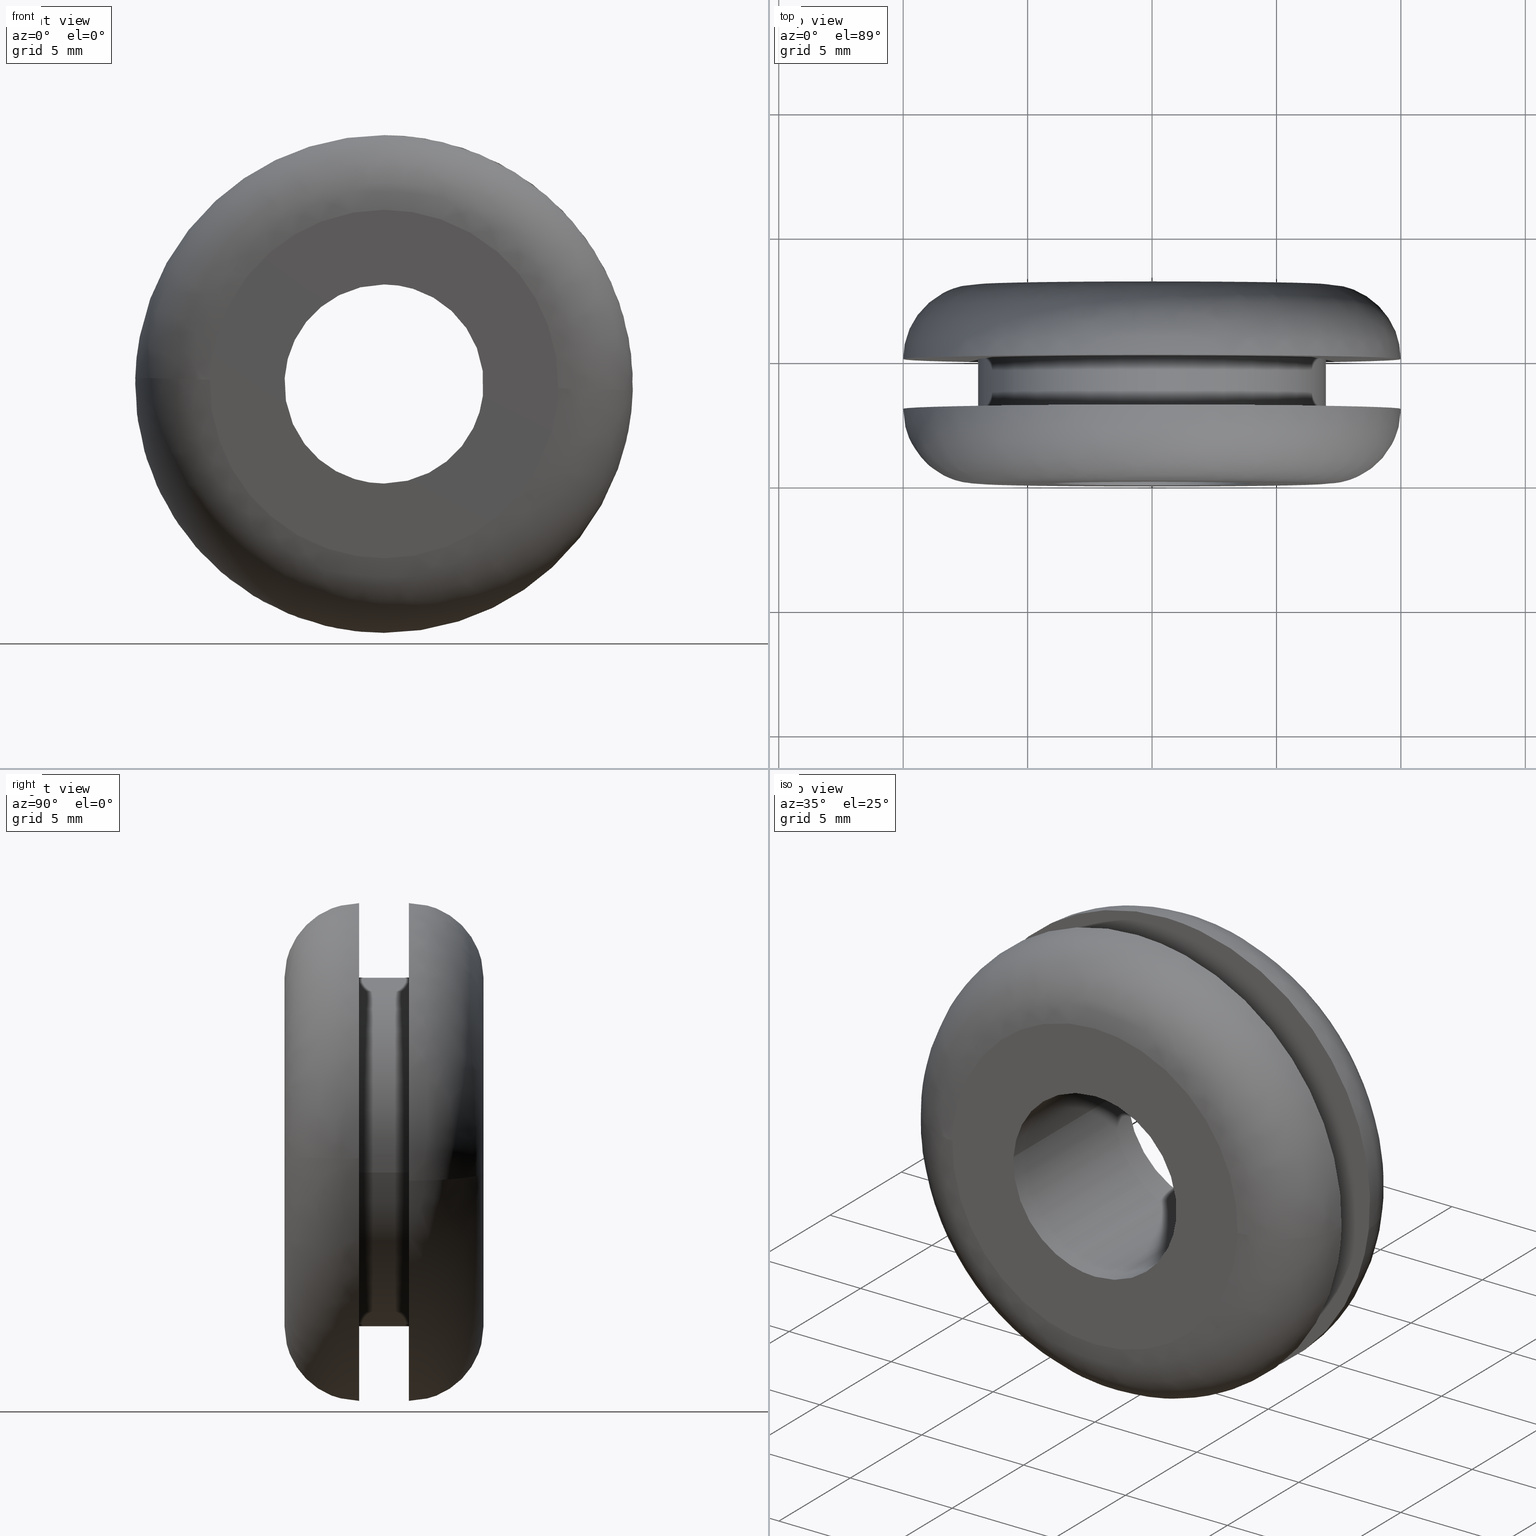
[diagram: canonical four-view strip — front | top / right | iso, engineering-drawing reading convention]
A machine part, canonical four-view strip (front | top / right | iso — engineering-drawing reading convention). The complete STEP part file that produces these views, byte-faithful:
ISO-10303-21;
HEADER;
/****************************************************************
 * Generated by software with PDE/Lib inside                    *
 * PDElib Version 4.4.1-0003, patched  Thursday August 19 11:58 *
 * International Technegroup Inc. (www.iti-oh.com)              *
 ****************************************************************/
FILE_DESCRIPTION((''),'2;1');
FILE_NAME('','2005-12-14T13:41:45',(''),(''),'','CADfix','');
FILE_SCHEMA(('AUTOMOTIVE_DESIGN'));
ENDSEC;
DATA;
#5=APPLICATION_CONTEXT('automotive design');
#6=APPLICATION_PROTOCOL_DEFINITION('Draft International Standard','automotive_design',1998,#5);
#7=PRODUCT_CONTEXT('None',#5,'mechanical');
#8=PRODUCT('grommet','','None',(#7));
#9=PRODUCT_RELATED_PRODUCT_CATEGORY('part','description',(#8));
#10=PRODUCT_DEFINITION_FORMATION('None','None',#8);
#11=PRODUCT_DEFINITION_CONTEXT('part definition',#5,'design');
#12=PRODUCT_DEFINITION('None','None',#10,#11);
#18=(NAMED_UNIT(*)PLANE_ANGLE_UNIT()SI_UNIT($,.RADIAN.));
#19=DIMENSIONAL_EXPONENTS(0.0,0.0,0.0,0.0,0.0,0.0,0.0);
#20=PLANE_ANGLE_MEASURE_WITH_UNIT(PLANE_ANGLE_MEASURE(0.017453292500000),#18);
#24=(CONVERSION_BASED_UNIT('DEGREE',#20)NAMED_UNIT(#19)PLANE_ANGLE_UNIT());
#28=(NAMED_UNIT(*)SI_UNIT($,.STERADIAN.)SOLID_ANGLE_UNIT());
#32=(LENGTH_UNIT()NAMED_UNIT(*)SI_UNIT(.MILLI.,.METRE.));
#34=UNCERTAINTY_MEASURE_WITH_UNIT(LENGTH_MEASURE(0.001000000000000),#32,'DISTANCE_ACCURACY_VALUE','');
#36=(GEOMETRIC_REPRESENTATION_CONTEXT(3)GLOBAL_UNCERTAINTY_ASSIGNED_CONTEXT((#34))GLOBAL_UNIT_ASSIGNED_CONTEXT((#24,#28,#32))REPRESENTATION_CONTEXT('None','None'));
#37=AXIS2_PLACEMENT_3D('',#38,#39,#40);
#38=CARTESIAN_POINT('',(0.0,0.0,0.0));
#39=DIRECTION('',(0.0,0.0,1.0));
#40=DIRECTION('',(1.0,0.0,0.0));
#41=ADVANCED_BREP_SHAPE_REPRESENTATION('',(#37,#911),#36);
#42=PRODUCT_DEFINITION_SHAPE('','',#12);
#43=SHAPE_DEFINITION_REPRESENTATION(#42,#41);
#44=CARTESIAN_POINT('',(6.951066684545665,5.050000000000002,-0.826239642597309));
#45=CARTESIAN_POINT('',(6.974713308140240,5.050000000000001,-0.627303100465844));
#46=CARTESIAN_POINT('',(6.986943588953067,5.050000000000001,-0.427339776743999));
#47=CARTESIAN_POINT('',(7.414283365697066,5.050000000000001,6.559603812209068));
#48=CARTESIAN_POINT('',(0.427339776743999,5.050000000000001,6.986943588953067));
#49=CARTESIAN_POINT('',(-6.559603812209068,5.050000000000001,7.414283365697066));
#50=CARTESIAN_POINT('',(-6.986943588953067,5.050000000000001,0.427339776743999));
#51=CARTESIAN_POINT('',(6.951066684545665,2.948750000000000,-0.826239642597309));
#52=CARTESIAN_POINT('',(6.974713308140240,2.948750000000000,-0.627303100465844));
#53=CARTESIAN_POINT('',(6.986943588953067,2.948750000000000,-0.427339776743999));
#54=CARTESIAN_POINT('',(7.414283365697066,2.948750000000000,6.559603812209068));
#55=CARTESIAN_POINT('',(0.427339776743999,2.948750000000000,6.986943588953067));
#56=CARTESIAN_POINT('',(-6.559603812209068,2.948750000000000,7.414283365697066));
#57=CARTESIAN_POINT('',(-6.986943588953067,2.948750000000000,0.427339776743999));
#65=(BOUNDED_SURFACE()B_SPLINE_SURFACE(2,1,((#44,#51),(#45,#52),(#46,#53),(#47,#54),(#48,#55),(#49,#56),(#50,#57)),.UNSPECIFIED.,.F.,.F.,.U.)B_SPLINE_SURFACE_WITH_KNOTS((3,2,2,3),(2,2),(0.0,0.463919189857867,12.061898936304530,23.659878682751181),(0.0,2.101250000000002),.UNSPECIFIED.)GEOMETRIC_REPRESENTATION_ITEM()RATIONAL_B_SPLINE_SURFACE(((0.977505800795127,0.977505800795127),(0.988284271247462,0.988284271247462),(1.0,1.0),(0.707106781186548,0.707106781186548),(1.0,1.0),(0.707106781186548,0.707106781186548),(1.0,1.0)))REPRESENTATION_ITEM('')SURFACE());
#66=CARTESIAN_POINT('',(6.951067166005178,2.999999999999949,-0.826235592109230));
#67=VERTEX_POINT('',#66);
#68=CARTESIAN_POINT('',(0.0,3.0,7.0));
#69=VERTEX_POINT('',#68);
#70=CARTESIAN_POINT('',(6.951067166005178,2.999999999999950,-0.826235592109230));
#71=CARTESIAN_POINT('',(7.0,3.000000000000000,-0.414566790908887));
#72=CARTESIAN_POINT('',(7.0,3.0,-1.836910E-016));
#73=CARTESIAN_POINT('',(6.999999999999999,3.000000000000000,6.999999999999999));
#74=CARTESIAN_POINT('',(0.0,3.0,7.0));
#82=(BOUNDED_CURVE()B_SPLINE_CURVE(2,(#70,#71,#72,#73,#74),.UNSPECIFIED.,.F.,.U.)B_SPLINE_CURVE_WITH_KNOTS((3,2,3),(0.229562571996310,0.250000000000000,0.500000000000000),.UNSPECIFIED.)CURVE()GEOMETRIC_REPRESENTATION_ITEM()RATIONAL_B_SPLINE_CURVE((0.956026947214111,0.976056063710924,1.0,0.707106781186547,1.0))REPRESENTATION_ITEM(''));
#83=EDGE_CURVE('',#67,#69,#82,.T.);
#84=ORIENTED_EDGE('',*,*,#83,.F.);
#85=CARTESIAN_POINT('',(6.951067160060351,5.0,-0.826235642122928));
#86=VERTEX_POINT('',#85);
#87=CARTESIAN_POINT('',(6.951067160060351,5.0,-0.826235642122928));
#88=CARTESIAN_POINT('',(6.951067166005178,2.999999999999949,-0.826235592109230));
#89=QUASI_UNIFORM_CURVE('',1,(#87,#88),.UNSPECIFIED.,.F.,.U.);
#90=EDGE_CURVE('',#86,#67,#89,.T.);
#91=ORIENTED_EDGE('',*,*,#90,.F.);
#92=CARTESIAN_POINT('',(0.0,5.0,7.0));
#93=VERTEX_POINT('',#92);
#94=CARTESIAN_POINT('',(6.951067160060351,5.000000000000001,-0.826235642122928));
#95=CARTESIAN_POINT('',(6.999999999999999,5.0,-0.414566816180102));
#96=CARTESIAN_POINT('',(7.0,5.0,-1.836910E-016));
#97=CARTESIAN_POINT('',(6.999999999999999,4.999999999999999,6.999999999999999));
#98=CARTESIAN_POINT('',(0.0,5.0,7.0));
#106=(BOUNDED_CURVE()B_SPLINE_CURVE(2,(#94,#95,#96,#97,#98),.UNSPECIFIED.,.F.,.U.)B_SPLINE_CURVE_WITH_KNOTS((3,2,3),(0.229562570780312,0.250000000000000,0.500000000000000),.UNSPECIFIED.)CURVE()GEOMETRIC_REPRESENTATION_ITEM()RATIONAL_B_SPLINE_CURVE((0.956026944830704,0.976056062286294,1.0,0.707106781186547,1.0))REPRESENTATION_ITEM(''));
#107=EDGE_CURVE('',#86,#93,#106,.T.);
#108=ORIENTED_EDGE('',*,*,#107,.T.);
#109=CARTESIAN_POINT('',(-6.986943966739478,5.0,0.427333599901195));
#110=VERTEX_POINT('',#109);
#111=CARTESIAN_POINT('',(0.0,5.0,7.0));
#112=CARTESIAN_POINT('',(-6.584948300672126,5.000000000000001,6.999999999999999));
#113=CARTESIAN_POINT('',(-6.986943966739478,5.0,0.427333599901195));
#121=(BOUNDED_CURVE()B_SPLINE_CURVE(2,(#111,#112,#113),.UNSPECIFIED.,.F.,.U.)B_SPLINE_CURVE_WITH_KNOTS((3,3),(0.500000000000000,0.739333114782848),.UNSPECIFIED.)CURVE()GEOMETRIC_REPRESENTATION_ITEM()RATIONAL_B_SPLINE_CURVE((1.0,0.719603814570409,0.976072368597561))REPRESENTATION_ITEM(''));
#122=EDGE_CURVE('',#93,#110,#121,.T.);
#123=ORIENTED_EDGE('',*,*,#122,.T.);
#124=CARTESIAN_POINT('',(-6.986943971456531,3.000000000000065,0.427333522775779));
#125=VERTEX_POINT('',#124);
#126=CARTESIAN_POINT('',(-6.986943966739478,5.0,0.427333599901195));
#127=CARTESIAN_POINT('',(-6.986943971456531,3.000000000000065,0.427333522775779));
#128=QUASI_UNIFORM_CURVE('',1,(#126,#127),.UNSPECIFIED.,.F.,.U.);
#129=EDGE_CURVE('',#110,#125,#128,.T.);
#130=ORIENTED_EDGE('',*,*,#129,.T.);
#131=CARTESIAN_POINT('',(0.0,3.0,7.0));
#132=CARTESIAN_POINT('',(-6.584948373495934,2.999999999999999,6.999999999999999));
#133=CARTESIAN_POINT('',(-6.986943971456531,3.000000000000065,0.427333522775779));
#141=(BOUNDED_CURVE()B_SPLINE_CURVE(2,(#131,#132,#133),.UNSPECIFIED.,.F.,.U.)B_SPLINE_CURVE_WITH_KNOTS((3,3),(0.500000000000000,0.739333116687507),.UNSPECIFIED.)CURVE()GEOMETRIC_REPRESENTATION_ITEM()RATIONAL_B_SPLINE_CURVE((1.0,0.719603812338962,0.976072372679614))REPRESENTATION_ITEM(''));
#142=EDGE_CURVE('',#69,#125,#141,.T.);
#143=ORIENTED_EDGE('',*,*,#142,.F.);
#144=EDGE_LOOP('',(#84,#91,#108,#123,#130,#143));
#145=FACE_OUTER_BOUND('',#144,.T.);
#146=ADVANCED_FACE('',(#145),#65,.T.);
#147=CARTESIAN_POINT('',(-6.986943588953067,5.050000000000001,0.427339776743999));
#148=CARTESIAN_POINT('',(-7.414283365697066,5.050000000000001,-6.559603812209068));
#149=CARTESIAN_POINT('',(-0.427339776743999,5.050000000000001,-6.986943588953067));
#150=CARTESIAN_POINT('',(6.170804435876506,5.050000000000001,-7.390503377127691));
#151=CARTESIAN_POINT('',(6.951066684545665,5.050000000000002,-0.826239642597309));
#152=CARTESIAN_POINT('',(-6.986943588953067,2.948750000000000,0.427339776743999));
#153=CARTESIAN_POINT('',(-7.414283365697066,2.948750000000000,-6.559603812209068));
#154=CARTESIAN_POINT('',(-0.427339776743999,2.948750000000000,-6.986943588953067));
#155=CARTESIAN_POINT('',(6.170804435876506,2.948750000000000,-7.390503377127691));
#156=CARTESIAN_POINT('',(6.951066684545665,2.948750000000000,-0.826239642597309));
#164=(BOUNDED_SURFACE()B_SPLINE_SURFACE(2,1,((#147,#152),(#148,#153),(#149,#154),(#150,#155),(#151,#156)),.UNSPECIFIED.,.F.,.F.,.U.)B_SPLINE_SURFACE_WITH_KNOTS((3,2,3),(2,2),(0.0,11.597979746446660,22.732040303035451),(0.0,2.101250000000002),.UNSPECIFIED.)GEOMETRIC_REPRESENTATION_ITEM()RATIONAL_B_SPLINE_SURFACE(((1.0,1.0),(0.707106781186548,0.707106781186548),(1.0,1.0),(0.718822509939086,0.718822509939086),(0.977505800795127,0.977505800795127)))REPRESENTATION_ITEM('')SURFACE());
#165=CARTESIAN_POINT('',(0.0,3.0,-7.0));
#166=VERTEX_POINT('',#165);
#167=CARTESIAN_POINT('',(0.0,3.0,-7.0));
#168=CARTESIAN_POINT('',(6.217225330029973,3.000000000000001,-6.999999999999999));
#169=CARTESIAN_POINT('',(6.951067166005178,2.999999999999950,-0.826235592109230));
#177=(BOUNDED_CURVE()B_SPLINE_CURVE(2,(#167,#168,#169),.UNSPECIFIED.,.F.,.U.)B_SPLINE_CURVE_WITH_KNOTS((3,3),(0.0,0.229562571996310),.UNSPECIFIED.)CURVE()GEOMETRIC_REPRESENTATION_ITEM()RATIONAL_B_SPLINE_CURVE((1.0,0.731050717475624,0.956026947214111))REPRESENTATION_ITEM(''));
#178=EDGE_CURVE('',#166,#67,#177,.T.);
#179=ORIENTED_EDGE('',*,*,#178,.F.);
#180=CARTESIAN_POINT('',(-6.986943971456531,3.000000000000065,0.427333522775779));
#181=CARTESIAN_POINT('',(-7.000000000000001,3.000000000000000,0.213866207338468));
#182=CARTESIAN_POINT('',(-7.0,3.0,-1.836910E-016));
#183=CARTESIAN_POINT('',(-6.999999999999999,3.000000000000000,-6.999999999999999));
#184=CARTESIAN_POINT('',(0.0,3.0,-7.0));
#192=(BOUNDED_CURVE()B_SPLINE_CURVE(2,(#180,#181,#182,#183,#184),.UNSPECIFIED.,.F.,.U.)B_SPLINE_CURVE_WITH_KNOTS((3,2,3),(0.739333116687507,0.750000000000000,1.0),.UNSPECIFIED.)CURVE()GEOMETRIC_REPRESENTATION_ITEM()RATIONAL_B_SPLINE_CURVE((0.976072372679614,0.987502968847585,1.0,0.707106781186547,1.0))REPRESENTATION_ITEM(''));
#193=EDGE_CURVE('',#125,#166,#192,.T.);
#194=ORIENTED_EDGE('',*,*,#193,.F.);
#195=ORIENTED_EDGE('',*,*,#129,.F.);
#196=CARTESIAN_POINT('',(0.0,5.0,-7.0));
#197=VERTEX_POINT('',#196);
#198=CARTESIAN_POINT('',(-6.986943966739478,5.0,0.427333599901195));
#199=CARTESIAN_POINT('',(-7.000000000000001,5.0,0.213866246009296));
#200=CARTESIAN_POINT('',(-7.0,5.0,-1.836910E-016));
#201=CARTESIAN_POINT('',(-6.999999999999999,4.999999999999999,-6.999999999999999));
#202=CARTESIAN_POINT('',(0.0,5.0,-7.0));
#210=(BOUNDED_CURVE()B_SPLINE_CURVE(2,(#198,#199,#200,#201,#202),.UNSPECIFIED.,.F.,.U.)B_SPLINE_CURVE_WITH_KNOTS((3,2,3),(0.739333114782848,0.750000000000000,1.0),.UNSPECIFIED.)CURVE()GEOMETRIC_REPRESENTATION_ITEM()RATIONAL_B_SPLINE_CURVE((0.976072368597561,0.987502966616138,1.0,0.707106781186547,1.0))REPRESENTATION_ITEM(''));
#211=EDGE_CURVE('',#110,#197,#210,.T.);
#212=ORIENTED_EDGE('',*,*,#211,.T.);
#213=CARTESIAN_POINT('',(0.0,5.0,-7.0));
#214=CARTESIAN_POINT('',(6.217225284981444,5.0,-6.999999999999999));
#215=CARTESIAN_POINT('',(6.951067160060351,5.000000000000001,-0.826235642122928));
#223=(BOUNDED_CURVE()B_SPLINE_CURVE(2,(#213,#214,#215),.UNSPECIFIED.,.F.,.U.)B_SPLINE_CURVE_WITH_KNOTS((3,3),(0.0,0.229562570780312),.UNSPECIFIED.)CURVE()GEOMETRIC_REPRESENTATION_ITEM()RATIONAL_B_SPLINE_CURVE((1.0,0.731050718900253,0.956026944830704))REPRESENTATION_ITEM(''));
#224=EDGE_CURVE('',#197,#86,#223,.T.);
#225=ORIENTED_EDGE('',*,*,#224,.T.);
#226=ORIENTED_EDGE('',*,*,#90,.T.);
#227=EDGE_LOOP('',(#179,#194,#195,#212,#225,#226));
#228=FACE_OUTER_BOUND('',#227,.T.);
#229=ADVANCED_FACE('',(#228),#164,.T.);
#230=CARTESIAN_POINT('',(3.972038105454666,8.200000000000001,-0.472136938627034));
#231=CARTESIAN_POINT('',(3.985550461794422,8.199999999999999,-0.358458914551911));
#232=CARTESIAN_POINT('',(3.992539193687467,8.199999999999999,-0.244194158139428));
#233=CARTESIAN_POINT('',(4.236733351826894,8.199999999999999,3.748345035548039));
#234=CARTESIAN_POINT('',(0.244194158139428,8.199999999999999,3.992539193687467));
#235=CARTESIAN_POINT('',(-3.748345035548039,8.199999999999999,4.236733351826894));
#236=CARTESIAN_POINT('',(-3.992539193687467,8.199999999999999,0.244194158139428));
#237=CARTESIAN_POINT('',(3.972038105454666,-0.205000000000000,-0.472136938627034));
#238=CARTESIAN_POINT('',(3.985550461794422,-0.205000000000000,-0.358458914551911));
#239=CARTESIAN_POINT('',(3.992539193687467,-0.205000000000000,-0.244194158139428));
#240=CARTESIAN_POINT('',(4.236733351826894,-0.205000000000000,3.748345035548039));
#241=CARTESIAN_POINT('',(0.244194158139428,-0.205000000000000,3.992539193687467));
#242=CARTESIAN_POINT('',(-3.748345035548039,-0.205000000000000,4.236733351826894));
#243=CARTESIAN_POINT('',(-3.992539193687467,-0.205000000000000,0.244194158139428));
#251=(BOUNDED_SURFACE()B_SPLINE_SURFACE(2,1,((#230,#237),(#231,#238),(#232,#239),(#233,#240),(#234,#241),(#235,#242),(#236,#243)),.UNSPECIFIED.,.F.,.F.,.U.)B_SPLINE_SURFACE_WITH_KNOTS((3,2,2,3),(2,2),(0.0,0.265096679918781,6.892513677888300,13.519930675857820),(0.0,8.404999999999999),.UNSPECIFIED.)GEOMETRIC_REPRESENTATION_ITEM()RATIONAL_B_SPLINE_SURFACE(((0.977505800795127,0.977505800795127),(0.988284271247462,0.988284271247462),(1.0,1.0),(0.707106781186548,0.707106781186548),(1.0,1.0),(0.707106781186548,0.707106781186548),(1.0,1.0)))REPRESENTATION_ITEM('')SURFACE());
#252=CARTESIAN_POINT('',(3.972038936126205,8.0,-0.472129950170368));
#253=VERTEX_POINT('',#252);
#254=CARTESIAN_POINT('',(0.0,8.0,4.0));
#255=VERTEX_POINT('',#254);
#256=CARTESIAN_POINT('',(3.972038936126205,8.0,-0.472129950170368));
#257=CARTESIAN_POINT('',(4.0,8.0,-0.236892947439694));
#258=CARTESIAN_POINT('',(4.0,8.0,-1.836910E-016));
#259=CARTESIAN_POINT('',(4.000000000000000,8.0,4.000000000000000));
#260=CARTESIAN_POINT('',(0.0,8.0,4.0));
#268=(BOUNDED_CURVE()B_SPLINE_CURVE(2,(#256,#257,#258,#259,#260),.UNSPECIFIED.,.F.,.U.)B_SPLINE_CURVE_WITH_KNOTS((3,2,3),(0.229562770862239,0.250000000000000,0.500000000000000),.UNSPECIFIED.)CURVE()GEOMETRIC_REPRESENTATION_ITEM()RATIONAL_B_SPLINE_CURVE((0.956027337000208,0.976056296696852,1.0,0.707106781186548,1.0))REPRESENTATION_ITEM(''));
#269=EDGE_CURVE('',#253,#255,#268,.T.);
#270=ORIENTED_EDGE('',*,*,#269,.F.);
#271=CARTESIAN_POINT('',(3.972038926118297,-3.389876E-016,-0.472130034368349));
#272=VERTEX_POINT('',#271);
#273=CARTESIAN_POINT('',(3.972038936126205,8.0,-0.472129950170368));
#274=CARTESIAN_POINT('',(3.972038926118297,-3.389876E-016,-0.472130034368349));
#275=QUASI_UNIFORM_CURVE('',1,(#273,#274),.UNSPECIFIED.,.F.,.U.);
#276=EDGE_CURVE('',#253,#272,#275,.T.);
#277=ORIENTED_EDGE('',*,*,#276,.T.);
#278=CARTESIAN_POINT('',(0.0,-7.347638E-016,4.0));
#279=VERTEX_POINT('',#278);
#280=CARTESIAN_POINT('',(3.972038926118297,-3.389876E-016,-0.472130034368349));
#281=CARTESIAN_POINT('',(4.0,-7.347638E-016,-0.236892989983728));
#282=CARTESIAN_POINT('',(4.0,-7.347638E-016,-1.836910E-016));
#283=CARTESIAN_POINT('',(4.000000000000000,-7.347638E-016,4.000000000000000));
#284=CARTESIAN_POINT('',(0.0,-7.347638E-016,4.0));
#292=(BOUNDED_CURVE()B_SPLINE_CURVE(2,(#280,#281,#282,#283,#284),.UNSPECIFIED.,.F.,.U.)B_SPLINE_CURVE_WITH_KNOTS((3,2,3),(0.229562767279762,0.250000000000000,0.500000000000000),.UNSPECIFIED.)CURVE()GEOMETRIC_REPRESENTATION_ITEM()RATIONAL_B_SPLINE_CURVE((0.956027329978387,0.976056292499719,1.0,0.707106781186548,1.0))REPRESENTATION_ITEM(''));
#293=EDGE_CURVE('',#272,#279,#292,.T.);
#294=ORIENTED_EDGE('',*,*,#293,.T.);
#295=CARTESIAN_POINT('',(-3.992539270140139,-2.979930E-016,0.244192908142875));
#296=VERTEX_POINT('',#295);
#297=CARTESIAN_POINT('',(0.0,-7.347638E-016,4.0));
#298=CARTESIAN_POINT('',(-3.762825447901079,-7.347638E-016,4.000000000000001));
#299=CARTESIAN_POINT('',(-3.992539270140139,-2.979930E-016,0.244192908142875));
#307=(BOUNDED_CURVE()B_SPLINE_CURVE(2,(#297,#298,#299),.UNSPECIFIED.,.F.,.U.)B_SPLINE_CURVE_WITH_KNOTS((3,3),(0.500000000000000,0.739333016263455),.UNSPECIFIED.)CURVE()GEOMETRIC_REPRESENTATION_ITEM()RATIONAL_B_SPLINE_CURVE((1.0,0.719603929993058,0.976072157451558))REPRESENTATION_ITEM(''));
#308=EDGE_CURVE('',#279,#296,#307,.T.);
#309=ORIENTED_EDGE('',*,*,#308,.T.);
#310=CARTESIAN_POINT('',(-3.992539271071073,7.999999999999998,0.244192892922069));
#311=VERTEX_POINT('',#310);
#312=CARTESIAN_POINT('',(-3.992539271071073,7.999999999999998,0.244192892922069));
#313=CARTESIAN_POINT('',(-3.992539270140139,-2.979930E-016,0.244192908142875));
#314=QUASI_UNIFORM_CURVE('',1,(#312,#313),.UNSPECIFIED.,.F.,.U.);
#315=EDGE_CURVE('',#311,#296,#314,.T.);
#316=ORIENTED_EDGE('',*,*,#315,.F.);
#317=CARTESIAN_POINT('',(0.0,8.0,4.0));
#318=CARTESIAN_POINT('',(-3.762825462272950,8.0,4.000000000000000));
#319=CARTESIAN_POINT('',(-3.992539271071073,7.999999999999998,0.244192892922069));
#327=(BOUNDED_CURVE()B_SPLINE_CURVE(2,(#317,#318,#319),.UNSPECIFIED.,.F.,.U.)B_SPLINE_CURVE_WITH_KNOTS((3,3),(0.500000000000000,0.739333016921257),.UNSPECIFIED.)CURVE()GEOMETRIC_REPRESENTATION_ITEM()RATIONAL_B_SPLINE_CURVE((1.0,0.719603929222394,0.976072158861354))REPRESENTATION_ITEM(''));
#328=EDGE_CURVE('',#255,#311,#327,.T.);
#329=ORIENTED_EDGE('',*,*,#328,.F.);
#330=EDGE_LOOP('',(#270,#277,#294,#309,#316,#329));
#331=FACE_OUTER_BOUND('',#330,.T.);
#332=ADVANCED_FACE('',(#331),#251,.F.);
#333=CARTESIAN_POINT('',(-3.989174226994832,8.199999999999996,0.299210877245890));
#334=CARTESIAN_POINT('',(-3.990851894947443,8.200000000000001,0.271781248683839));
#335=CARTESIAN_POINT('',(-4.236733351826894,8.199999999999999,-3.748345035548039));
#336=CARTESIAN_POINT('',(-0.244194158139428,8.199999999999999,-3.992539193687467));
#337=CARTESIAN_POINT('',(3.526173963358004,8.199999999999999,-4.223144786930110));
#338=CARTESIAN_POINT('',(3.975376533398390,8.200000000000001,-0.444051097592546));
#339=CARTESIAN_POINT('',(3.978697018570981,8.199999999999999,-0.416116207192987));
#340=CARTESIAN_POINT('',(-3.989174226994832,-0.205000000000000,0.299210877245890));
#341=CARTESIAN_POINT('',(-3.990851894947443,-0.205000000000000,0.271781248683839));
#342=CARTESIAN_POINT('',(-4.236733351826894,-0.205000000000000,-3.748345035548039));
#343=CARTESIAN_POINT('',(-0.244194158139428,-0.205000000000000,-3.992539193687467));
#344=CARTESIAN_POINT('',(3.526173963358004,-0.205000000000000,-4.223144786930110));
#345=CARTESIAN_POINT('',(3.975376533398390,-0.205000000000000,-0.444051097592546));
#346=CARTESIAN_POINT('',(3.978697018570981,-0.205000000000000,-0.416116207192987));
#354=(BOUNDED_SURFACE()B_SPLINE_SURFACE(2,1,((#333,#340),(#334,#341),(#335,#342),(#336,#343),(#337,#344),(#338,#345),(#339,#346)),.UNSPECIFIED.,.F.,.F.,.U.)B_SPLINE_SURFACE_WITH_KNOTS((3,1,2,1,3),(2,2),(0.0,0.064947250892111,6.692364248861629,13.054684566912369,13.119641344657660),(0.0,8.405000000000001),.UNSPECIFIED.)GEOMETRIC_REPRESENTATION_ITEM()RATIONAL_B_SPLINE_SURFACE(((1.005740580190655,1.005740580190655),(1.002870290095327,1.002870290095327),(0.707106781186548,0.707106781186548),(1.0,1.0),(0.718822509939086,0.718822509939086),(0.980146855031721,0.980146855031721),(0.982787909268315,0.982787909268315)))REPRESENTATION_ITEM('')SURFACE());
#355=CARTESIAN_POINT('',(0.0,8.0,-4.0));
#356=VERTEX_POINT('',#355);
#357=CARTESIAN_POINT('',(0.0,8.0,-4.0));
#358=CARTESIAN_POINT('',(3.552704398476067,8.000000000000002,-4.000000000000000));
#359=CARTESIAN_POINT('',(3.972038936126205,8.0,-0.472129950170368));
#367=(BOUNDED_CURVE()B_SPLINE_CURVE(2,(#357,#358,#359),.UNSPECIFIED.,.F.,.U.)B_SPLINE_CURVE_WITH_KNOTS((3,3),(0.0,0.229562770862239),.UNSPECIFIED.)CURVE()GEOMETRIC_REPRESENTATION_ITEM()RATIONAL_B_SPLINE_CURVE((1.0,0.731050484489696,0.956027337000208))REPRESENTATION_ITEM(''));
#368=EDGE_CURVE('',#356,#253,#367,.T.);
#369=ORIENTED_EDGE('',*,*,#368,.F.);
#370=CARTESIAN_POINT('',(-3.992539271071073,7.999999999999998,0.244192892922069));
#371=CARTESIAN_POINT('',(-4.000000000000000,8.0,0.122210418811918));
#372=CARTESIAN_POINT('',(-4.0,8.0,-1.836910E-016));
#373=CARTESIAN_POINT('',(-4.000000000000000,8.0,-4.000000000000000));
#374=CARTESIAN_POINT('',(0.0,8.0,-4.0));
#382=(BOUNDED_CURVE()B_SPLINE_CURVE(2,(#370,#371,#372,#373,#374),.UNSPECIFIED.,.F.,.U.)B_SPLINE_CURVE_WITH_KNOTS((3,2,3),(0.739333016921257,0.750000000000000,1.0),.UNSPECIFIED.)CURVE()GEOMETRIC_REPRESENTATION_ITEM()RATIONAL_B_SPLINE_CURVE((0.976072158861354,0.987502851964153,1.0,0.707106781186548,1.0))REPRESENTATION_ITEM(''));
#383=EDGE_CURVE('',#311,#356,#382,.T.);
#384=ORIENTED_EDGE('',*,*,#383,.F.);
#385=ORIENTED_EDGE('',*,*,#315,.T.);
#386=CARTESIAN_POINT('',(0.0,-7.347638E-016,-4.0));
#387=VERTEX_POINT('',#386);
#388=CARTESIAN_POINT('',(-3.992539270140139,-2.979930E-016,0.244192908142875));
#389=CARTESIAN_POINT('',(-4.000000000000001,-7.347638E-016,0.122210426443659));
#390=CARTESIAN_POINT('',(-4.0,-7.347638E-016,-1.836910E-016));
#391=CARTESIAN_POINT('',(-4.000000000000000,-7.347638E-016,-4.000000000000000));
#392=CARTESIAN_POINT('',(0.0,-7.347638E-016,-4.0));
#400=(BOUNDED_CURVE()B_SPLINE_CURVE(2,(#388,#389,#390,#391,#392),.UNSPECIFIED.,.F.,.U.)B_SPLINE_CURVE_WITH_KNOTS((3,2,3),(0.739333016263455,0.750000000000000,1.0),.UNSPECIFIED.)CURVE()GEOMETRIC_REPRESENTATION_ITEM()RATIONAL_B_SPLINE_CURVE((0.976072157451558,0.987502851193490,1.0,0.707106781186548,1.0))REPRESENTATION_ITEM(''));
#401=EDGE_CURVE('',#296,#387,#400,.T.);
#402=ORIENTED_EDGE('',*,*,#401,.T.);
#403=CARTESIAN_POINT('',(0.0,-7.347638E-016,-4.0));
#404=CARTESIAN_POINT('',(3.552704322636881,-7.347638E-016,-4.000000000000001));
#405=CARTESIAN_POINT('',(3.972038926118297,-3.389876E-016,-0.472130034368349));
#413=(BOUNDED_CURVE()B_SPLINE_CURVE(2,(#403,#404,#405),.UNSPECIFIED.,.F.,.U.)B_SPLINE_CURVE_WITH_KNOTS((3,3),(0.0,0.229562767279762),.UNSPECIFIED.)CURVE()GEOMETRIC_REPRESENTATION_ITEM()RATIONAL_B_SPLINE_CURVE((1.0,0.731050488686828,0.956027329978387))REPRESENTATION_ITEM(''));
#414=EDGE_CURVE('',#387,#272,#413,.T.);
#415=ORIENTED_EDGE('',*,*,#414,.T.);
#416=ORIENTED_EDGE('',*,*,#276,.F.);
#417=EDGE_LOOP('',(#369,#384,#385,#402,#415,#416));
#418=FACE_OUTER_BOUND('',#417,.T.);
#419=ADVANCED_FACE('',(#418),#354,.F.);
#420=CARTESIAN_POINT('',(-9.989543121437887,3.209172553633379,0.251117477667668));
#421=CARTESIAN_POINT('',(-10.240660599105558,3.209172553633380,-9.738425643770217));
#422=CARTESIAN_POINT('',(-0.251117477667671,3.209172553633379,-9.989543121437887));
#423=CARTESIAN_POINT('',(9.738425643770217,3.209172553633380,-10.240660599105560));
#424=CARTESIAN_POINT('',(9.989543121437887,3.209172553633379,-0.251117477667672));
#425=CARTESIAN_POINT('',(-10.229985953123554,-0.232007044478159,0.257161737818726));
#426=CARTESIAN_POINT('',(-10.487147690942281,-0.232007044478159,-9.972824215304826));
#427=CARTESIAN_POINT('',(-0.257161737818728,-0.232007044478159,-10.229985953123554));
#428=CARTESIAN_POINT('',(9.972824215304826,-0.232007044478159,-10.487147690942281));
#429=CARTESIAN_POINT('',(10.229985953123554,-0.232007044478159,-0.257161737818729));
#430=CARTESIAN_POINT('',(-6.789803307728222,0.007222948350152,0.170682308466864));
#431=CARTESIAN_POINT('',(-6.960485616195088,0.007222948350151,-6.619120999261356));
#432=CARTESIAN_POINT('',(-0.170682308466866,0.007222948350152,-6.789803307728222));
#433=CARTESIAN_POINT('',(6.619120999261356,0.007222948350151,-6.960485616195088));
#434=CARTESIAN_POINT('',(6.789803307728222,0.007222948350152,-0.170682308466866));
#442=(BOUNDED_SURFACE()B_SPLINE_SURFACE(2,2,((#420,#425,#430),(#421,#426,#431),(#422,#427,#432),(#423,#428,#433),(#424,#429,#434)),.UNSPECIFIED.,.F.,.F.,.U.)B_SPLINE_SURFACE_WITH_KNOTS((3,2,3),(3,3),(0.0,16.556445674216121,33.112891348432242),(0.0,5.467110975578632),.UNSPECIFIED.)GEOMETRIC_REPRESENTATION_ITEM()RATIONAL_B_SPLINE_SURFACE(((0.910892941386805,0.599412934105556,0.915966621324616),(0.644098575789570,0.423848950436964,0.647686209279166),(0.910892941386805,0.599412934105556,0.915966621324616),(0.644098575789570,0.423848950436964,0.647686209279166),(0.910892941386805,0.599412934105556,0.915966621324616)))REPRESENTATION_ITEM('')SURFACE());
#443=CARTESIAN_POINT('',(-9.996841892832897,2.999999999971457,0.251300954437361));
#444=VERTEX_POINT('',#443);
#445=CARTESIAN_POINT('',(0.0,3.0,-10.0));
#446=VERTEX_POINT('',#445);
#447=CARTESIAN_POINT('',(-9.996841892832897,2.999999999971457,0.251300954437361));
#448=CARTESIAN_POINT('',(-10.000000000000002,3.000000000000000,0.125670321237784));
#449=CARTESIAN_POINT('',(-10.0,3.0,-1.836910E-016));
#450=CARTESIAN_POINT('',(-10.000000000000002,3.0,-10.000000000000002));
#451=CARTESIAN_POINT('',(0.0,3.0,-10.0));
#459=(BOUNDED_CURVE()B_SPLINE_CURVE(2,(#447,#448,#449,#450,#451),.UNSPECIFIED.,.F.,.U.)B_SPLINE_CURVE_WITH_KNOTS((3,2,3),(0.745579891769668,0.750000000000000,1.0),.UNSPECIFIED.)CURVE()GEOMETRIC_REPRESENTATION_ITEM()RATIONAL_B_SPLINE_CURVE((0.989826157681261,0.994821521091657,1.0,0.707106781186548,1.0))REPRESENTATION_ITEM(''));
#460=EDGE_CURVE('',#444,#446,#459,.T.);
#461=ORIENTED_EDGE('',*,*,#460,.T.);
#462=CARTESIAN_POINT('',(9.996841892832897,2.999999999971457,-0.251300954437362));
#463=VERTEX_POINT('',#462);
#464=CARTESIAN_POINT('',(0.0,3.0,-10.0));
#465=CARTESIAN_POINT('',(9.751778761798706,3.000000000000000,-10.0));
#466=CARTESIAN_POINT('',(9.996841892832897,2.999999999971457,-0.251300954437362));
#474=(BOUNDED_CURVE()B_SPLINE_CURVE(2,(#464,#465,#466),.UNSPECIFIED.,.F.,.U.)B_SPLINE_CURVE_WITH_KNOTS((3,3),(0.0,0.245579891769668),.UNSPECIFIED.)CURVE()GEOMETRIC_REPRESENTATION_ITEM()RATIONAL_B_SPLINE_CURVE((1.0,0.712285260094891,0.989826157681261))REPRESENTATION_ITEM(''));
#475=EDGE_CURVE('',#446,#463,#474,.T.);
#476=ORIENTED_EDGE('',*,*,#475,.T.);
#477=CARTESIAN_POINT('',(6.997789325016047,-1.038440E-016,-0.175910668105941));
#478=VERTEX_POINT('',#477);
#479=CARTESIAN_POINT('',(9.996841892832897,2.999999999971456,-0.251300954437362));
#480=CARTESIAN_POINT('',(9.996841892775928,6.600574E-011,-0.251300954431939));
#481=CARTESIAN_POINT('',(6.997789325016048,-1.038440E-016,-0.175910668105941));
#489=(BOUNDED_CURVE()B_SPLINE_CURVE(2,(#479,#480,#481),.UNSPECIFIED.,.F.,.U.)B_SPLINE_CURVE_WITH_KNOTS((3,3),(-1.723441281965177,-0.263586878950601),.UNSPECIFIED.)CURVE()GEOMETRIC_REPRESENTATION_ITEM()RATIONAL_B_SPLINE_CURVE((0.883897567131759,0.626638727245067,0.888510409054381))REPRESENTATION_ITEM(''));
#490=EDGE_CURVE('',#463,#478,#489,.T.);
#491=ORIENTED_EDGE('',*,*,#490,.T.);
#492=CARTESIAN_POINT('',(0.0,-1.332268E-015,-7.0));
#493=VERTEX_POINT('',#492);
#494=CARTESIAN_POINT('',(0.0,-1.332268E-015,-7.0));
#495=CARTESIAN_POINT('',(6.826245133261127,-1.332268E-015,-7.0));
#496=CARTESIAN_POINT('',(6.997789325016048,-1.038440E-016,-0.175910668105941));
#504=(BOUNDED_CURVE()B_SPLINE_CURVE(2,(#494,#495,#496),.UNSPECIFIED.,.F.,.U.)B_SPLINE_CURVE_WITH_KNOTS((3,3),(0.0,0.245579891769720),.UNSPECIFIED.)CURVE()GEOMETRIC_REPRESENTATION_ITEM()RATIONAL_B_SPLINE_CURVE((1.0,0.712285260094830,0.989826157681378))REPRESENTATION_ITEM(''));
#505=EDGE_CURVE('',#493,#478,#504,.T.);
#506=ORIENTED_EDGE('',*,*,#505,.F.);
#507=CARTESIAN_POINT('',(-6.997789325016046,-1.038440E-016,0.175910668105943));
#508=VERTEX_POINT('',#507);
#509=CARTESIAN_POINT('',(-6.997789325016046,-1.038440E-016,0.175910668105943));
#510=CARTESIAN_POINT('',(-6.999999999999999,-1.332268E-015,0.087969224865409));
#511=CARTESIAN_POINT('',(-7.0,-1.332268E-015,-1.836910E-016));
#512=CARTESIAN_POINT('',(-6.999999999999999,-1.332268E-015,-6.999999999999999));
#513=CARTESIAN_POINT('',(0.0,-1.332268E-015,-7.0));
#521=(BOUNDED_CURVE()B_SPLINE_CURVE(2,(#509,#510,#511,#512,#513),.UNSPECIFIED.,.F.,.U.)B_SPLINE_CURVE_WITH_KNOTS((3,2,3),(0.745579891769720,0.750000000000000,1.0),.UNSPECIFIED.)CURVE()GEOMETRIC_REPRESENTATION_ITEM()RATIONAL_B_SPLINE_CURVE((0.989826157681378,0.994821521091718,1.0,0.707106781186547,1.0))REPRESENTATION_ITEM(''));
#522=EDGE_CURVE('',#508,#493,#521,.T.);
#523=ORIENTED_EDGE('',*,*,#522,.F.);
#524=CARTESIAN_POINT('',(-9.996841892832897,2.999999999971456,0.251300954437361));
#525=CARTESIAN_POINT('',(-9.996841892775928,6.600574E-011,0.251300954431940));
#526=CARTESIAN_POINT('',(-6.997789325016046,-1.038440E-016,0.175910668105943));
#534=(BOUNDED_CURVE()B_SPLINE_CURVE(2,(#524,#525,#526),.UNSPECIFIED.,.F.,.U.)B_SPLINE_CURVE_WITH_KNOTS((3,3),(-1.723441281965177,-0.263586878950601),.UNSPECIFIED.)CURVE()GEOMETRIC_REPRESENTATION_ITEM()RATIONAL_B_SPLINE_CURVE((0.883897567131759,0.626638727245067,0.888510409054381))REPRESENTATION_ITEM(''));
#535=EDGE_CURVE('',#444,#508,#534,.T.);
#536=ORIENTED_EDGE('',*,*,#535,.F.);
#537=EDGE_LOOP('',(#461,#476,#491,#506,#523,#536));
#538=FACE_OUTER_BOUND('',#537,.T.);
#539=ADVANCED_FACE('',(#538),#442,.T.);
#540=CARTESIAN_POINT('',(9.989543121437887,3.209172553633379,-0.251117477667667));
#541=CARTESIAN_POINT('',(10.240660599105553,3.209172553633380,9.738425643770221));
#542=CARTESIAN_POINT('',(0.251117477667668,3.209172553633379,9.989543121437887));
#543=CARTESIAN_POINT('',(-9.738425643770221,3.209172553633380,10.240660599105558));
#544=CARTESIAN_POINT('',(-9.989543121437887,3.209172553633379,0.251117477667668));
#545=CARTESIAN_POINT('',(10.229985953123554,-0.232007044478159,-0.257161737818724));
#546=CARTESIAN_POINT('',(10.487147690942278,-0.232007044478159,9.972824215304829));
#547=CARTESIAN_POINT('',(0.257161737818725,-0.232007044478159,10.229985953123554));
#548=CARTESIAN_POINT('',(-9.972824215304829,-0.232007044478159,10.487147690942280));
#549=CARTESIAN_POINT('',(-10.229985953123554,-0.232007044478159,0.257161737818726));
#550=CARTESIAN_POINT('',(6.789803307728222,0.007222948350152,-0.170682308466863));
#551=CARTESIAN_POINT('',(6.960485616195085,0.007222948350151,6.619120999261360));
#552=CARTESIAN_POINT('',(0.170682308466864,0.007222948350152,6.789803307728222));
#553=CARTESIAN_POINT('',(-6.619120999261360,0.007222948350151,6.960485616195085));
#554=CARTESIAN_POINT('',(-6.789803307728222,0.007222948350152,0.170682308466864));
#562=(BOUNDED_SURFACE()B_SPLINE_SURFACE(2,2,((#540,#545,#550),(#541,#546,#551),(#542,#547,#552),(#543,#548,#553),(#544,#549,#554)),.UNSPECIFIED.,.F.,.F.,.U.)B_SPLINE_SURFACE_WITH_KNOTS((3,2,3),(3,3),(0.0,16.556445674216121,33.112891348432242),(0.0,5.467110975578633),.UNSPECIFIED.)GEOMETRIC_REPRESENTATION_ITEM()RATIONAL_B_SPLINE_SURFACE(((0.910892941386805,0.599412934105556,0.915966621324616),(0.644098575789570,0.423848950436964,0.647686209279166),(0.910892941386805,0.599412934105556,0.915966621324616),(0.644098575789570,0.423848950436964,0.647686209279166),(0.910892941386805,0.599412934105556,0.915966621324616)))REPRESENTATION_ITEM('')SURFACE());
#563=CARTESIAN_POINT('',(0.0,3.0,10.0));
#564=VERTEX_POINT('',#563);
#565=CARTESIAN_POINT('',(0.0,3.0,10.0));
#566=CARTESIAN_POINT('',(-9.751778761798668,3.0,10.000000000000002));
#567=CARTESIAN_POINT('',(-9.996841892832897,2.999999999971457,0.251300954437361));
#575=(BOUNDED_CURVE()B_SPLINE_CURVE(2,(#565,#566,#567),.UNSPECIFIED.,.F.,.U.)B_SPLINE_CURVE_WITH_KNOTS((3,3),(0.500000000000000,0.745579891769667),.UNSPECIFIED.)CURVE()GEOMETRIC_REPRESENTATION_ITEM()RATIONAL_B_SPLINE_CURVE((1.0,0.712285260094892,0.989826157681259))REPRESENTATION_ITEM(''));
#576=EDGE_CURVE('',#564,#444,#575,.T.);
#577=ORIENTED_EDGE('',*,*,#576,.T.);
#578=ORIENTED_EDGE('',*,*,#535,.T.);
#579=CARTESIAN_POINT('',(0.0,-1.332268E-015,7.0));
#580=VERTEX_POINT('',#579);
#581=CARTESIAN_POINT('',(0.0,-1.332268E-015,7.0));
#582=CARTESIAN_POINT('',(-6.826245133261146,-1.332268E-015,6.999999999999999));
#583=CARTESIAN_POINT('',(-6.997789325016046,-1.038440E-016,0.175910668105943));
#591=(BOUNDED_CURVE()B_SPLINE_CURVE(2,(#581,#582,#583),.UNSPECIFIED.,.F.,.U.)B_SPLINE_CURVE_WITH_KNOTS((3,3),(0.500000000000000,0.745579891769721),.UNSPECIFIED.)CURVE()GEOMETRIC_REPRESENTATION_ITEM()RATIONAL_B_SPLINE_CURVE((1.0,0.712285260094829,0.989826157681379))REPRESENTATION_ITEM(''));
#592=EDGE_CURVE('',#580,#508,#591,.T.);
#593=ORIENTED_EDGE('',*,*,#592,.F.);
#594=CARTESIAN_POINT('',(6.997789325016047,-1.038440E-016,-0.175910668105941));
#595=CARTESIAN_POINT('',(6.999999999999999,-1.332268E-015,-0.087969224865407));
#596=CARTESIAN_POINT('',(7.0,-1.332268E-015,-1.836910E-016));
#597=CARTESIAN_POINT('',(6.999999999999999,-1.332268E-015,6.999999999999999));
#598=CARTESIAN_POINT('',(0.0,-1.332268E-015,7.0));
#606=(BOUNDED_CURVE()B_SPLINE_CURVE(2,(#594,#595,#596,#597,#598),.UNSPECIFIED.,.F.,.U.)B_SPLINE_CURVE_WITH_KNOTS((3,2,3),(0.245579891769720,0.250000000000000,0.500000000000000),.UNSPECIFIED.)CURVE()GEOMETRIC_REPRESENTATION_ITEM()RATIONAL_B_SPLINE_CURVE((0.989826157681378,0.994821521091718,1.0,0.707106781186547,1.0))REPRESENTATION_ITEM(''));
#607=EDGE_CURVE('',#478,#580,#606,.T.);
#608=ORIENTED_EDGE('',*,*,#607,.F.);
#609=ORIENTED_EDGE('',*,*,#490,.F.);
#610=CARTESIAN_POINT('',(9.996841892832897,2.999999999971457,-0.251300954437362));
#611=CARTESIAN_POINT('',(10.0,3.000000000000000,-0.125670321237785));
#612=CARTESIAN_POINT('',(10.0,3.0,-1.836910E-016));
#613=CARTESIAN_POINT('',(10.000000000000002,3.0,10.000000000000002));
#614=CARTESIAN_POINT('',(0.0,3.0,10.0));
#622=(BOUNDED_CURVE()B_SPLINE_CURVE(2,(#610,#611,#612,#613,#614),.UNSPECIFIED.,.F.,.U.)B_SPLINE_CURVE_WITH_KNOTS((3,2,3),(0.245579891769668,0.250000000000000,0.500000000000000),.UNSPECIFIED.)CURVE()GEOMETRIC_REPRESENTATION_ITEM()RATIONAL_B_SPLINE_CURVE((0.989826157681261,0.994821521091657,1.0,0.707106781186548,1.0))REPRESENTATION_ITEM(''));
#623=EDGE_CURVE('',#463,#564,#622,.T.);
#624=ORIENTED_EDGE('',*,*,#623,.T.);
#625=EDGE_LOOP('',(#577,#578,#593,#608,#609,#624));
#626=FACE_OUTER_BOUND('',#625,.T.);
#627=ADVANCED_FACE('',(#626),#562,.T.);
#628=CARTESIAN_POINT('',(6.746520918641947,7.992777020566767,-0.784226261177005));
#629=CARTESIAN_POINT('',(6.791947830658965,7.992777020566765,-0.393428825074623));
#630=CARTESIAN_POINT('',(6.791947830658966,7.992777020566765,-1.247619E-015));
#631=CARTESIAN_POINT('',(6.791947830658968,7.992777020566765,6.791947830658967));
#632=CARTESIAN_POINT('',(1.663492E-015,7.992777020566765,6.791947830658966));
#633=CARTESIAN_POINT('',(-6.791947830658967,7.992777020566765,6.791947830658968));
#634=CARTESIAN_POINT('',(-6.791947830658966,7.992777020566765,2.079366E-015));
#635=CARTESIAN_POINT('',(10.164776786349039,8.232007728821516,-1.181569729196356));
#636=CARTESIAN_POINT('',(10.233220125710844,8.232007728821518,-0.592767181251713));
#637=CARTESIAN_POINT('',(10.233220125710840,8.232007728821515,-1.879750E-015));
#638=CARTESIAN_POINT('',(10.233220125710840,8.232007728821515,10.233220125710837));
#639=CARTESIAN_POINT('',(2.506333E-015,8.232007728821515,10.233220125710840));
#640=CARTESIAN_POINT('',(-10.233220125710837,8.232007728821515,10.233220125710840));
#641=CARTESIAN_POINT('',(-10.233220125710840,8.232007728821515,3.132917E-015));
#642=CARTESIAN_POINT('',(9.925864130939941,4.790825399647289,-1.153798144292257));
#643=CARTESIAN_POINT('',(9.992698779791791,4.790825399647289,-0.578834796479388));
#644=CARTESIAN_POINT('',(9.992698779791787,4.790825399647289,-1.835568E-015));
#645=CARTESIAN_POINT('',(9.992698779791789,4.790825399647290,9.992698779791786));
#646=CARTESIAN_POINT('',(2.447424E-015,4.790825399647289,9.992698779791787));
#647=CARTESIAN_POINT('',(-9.992698779791786,4.790825399647290,9.992698779791789));
#648=CARTESIAN_POINT('',(-9.992698779791787,4.790825399647289,3.059281E-015));
#656=(BOUNDED_SURFACE()B_SPLINE_SURFACE(2,2,((#628,#635,#642),(#629,#636,#643),(#630,#637,#644),(#631,#638,#645),(#632,#639,#646),(#633,#640,#647),(#634,#641,#648)),.UNSPECIFIED.,.F.,.F.,.U.)B_SPLINE_SURFACE_WITH_KNOTS((3,2,2,3),(3,3),(0.0,1.324514371819085,17.880959809014431,34.437405246209771),(0.0,5.467113995482167),.UNSPECIFIED.)GEOMETRIC_REPRESENTATION_ITEM()RATIONAL_B_SPLINE_SURFACE(((0.876475839198861,0.573569771734359,0.871621114357838),(0.894504270207006,0.585367658904326,0.889549687425871),(0.915966684175149,0.599412760126772,0.910893222915476),(0.647686253721205,0.423848827415386,0.644098774860403),(0.915966684175149,0.599412760126772,0.910893222915476),(0.647686253721205,0.423848827415386,0.644098774860403),(0.915966684175149,0.599412760126772,0.910893222915476)))REPRESENTATION_ITEM('')SURFACE());
#657=CARTESIAN_POINT('',(9.933117099610479,4.999997884923427,-1.154636170123739));
#658=VERTEX_POINT('',#657);
#659=CARTESIAN_POINT('',(0.0,5.0,10.0));
#660=VERTEX_POINT('',#659);
#661=CARTESIAN_POINT('',(9.933117099610479,4.999997884923427,-1.154636170123739));
#662=CARTESIAN_POINT('',(9.999999999996716,4.999997939473606,-0.579255198448484));
#663=CARTESIAN_POINT('',(9.999999999996813,4.999998000732061,3.706863E-013));
#664=CARTESIAN_POINT('',(9.999999999998499,4.999999058270348,10.000000000000174));
#665=CARTESIAN_POINT('',(0.0,5.0,10.0));
#673=(BOUNDED_CURVE()B_SPLINE_CURVE(2,(#661,#662,#663,#664,#665),.UNSPECIFIED.,.F.,.U.)B_SPLINE_CURVE_WITH_KNOTS((3,2,3),(0.230000104273615,0.250000000000000,0.500000000000000),.UNSPECIFIED.)CURVE()GEOMETRIC_REPRESENTATION_ITEM()RATIONAL_B_SPLINE_CURVE((0.956886323426515,0.976568664659063,1.0,0.707106781186548,1.0))REPRESENTATION_ITEM(''));
#674=EDGE_CURVE('',#658,#660,#673,.T.);
#675=ORIENTED_EDGE('',*,*,#674,.F.);
#676=CARTESIAN_POINT('',(6.953181476408444,8.0,-0.808249611139411));
#677=VERTEX_POINT('',#676);
#678=CARTESIAN_POINT('',(6.953181476408444,8.0,-0.808249611139411));
#679=CARTESIAN_POINT('',(9.933118841600052,7.999999988889059,-1.154639478196543));
#680=CARTESIAN_POINT('',(9.933117099610479,4.999997884923428,-1.154636170123739));
#688=(BOUNDED_CURVE()B_SPLINE_CURVE(2,(#678,#679,#680),.UNSPECIFIED.,.F.,.U.)B_SPLINE_CURVE_WITH_KNOTS((3,3),(-1.736413117239035,-0.276557992127998),.UNSPECIFIED.)CURVE()GEOMETRIC_REPRESENTATION_ITEM()RATIONAL_B_SPLINE_CURVE((0.850203274983957,0.599621775263391,0.845789556702544))REPRESENTATION_ITEM(''));
#689=EDGE_CURVE('',#677,#658,#688,.T.);
#690=ORIENTED_EDGE('',*,*,#689,.F.);
#691=CARTESIAN_POINT('',(0.0,8.0,7.0));
#692=VERTEX_POINT('',#691);
#693=CARTESIAN_POINT('',(6.953181476408444,7.999999999999999,-0.808249611139411));
#694=CARTESIAN_POINT('',(6.999999999999999,8.0,-0.405480808946240));
#695=CARTESIAN_POINT('',(7.0,8.0,-1.836910E-016));
#696=CARTESIAN_POINT('',(6.999999999999999,8.0,6.999999999999999));
#697=CARTESIAN_POINT('',(0.0,8.0,7.0));
#705=(BOUNDED_CURVE()B_SPLINE_CURVE(2,(#693,#694,#695,#696,#697),.UNSPECIFIED.,.F.,.U.)B_SPLINE_CURVE_WITH_KNOTS((3,2,3),(0.229999999746581,0.250000000000000,0.500000000000000),.UNSPECIFIED.)CURVE()GEOMETRIC_REPRESENTATION_ITEM()RATIONAL_B_SPLINE_CURVE((0.956886117691870,0.976568542198025,1.0,0.707106781186547,1.0))REPRESENTATION_ITEM(''));
#706=EDGE_CURVE('',#677,#692,#705,.T.);
#707=ORIENTED_EDGE('',*,*,#706,.T.);
#708=CARTESIAN_POINT('',(-7.000000000035425,7.999999999999999,8.681510E-018));
#709=VERTEX_POINT('',#708);
#710=CARTESIAN_POINT('',(0.0,8.0,7.0));
#711=CARTESIAN_POINT('',(-6.999999999999965,8.0,6.999999999999999));
#712=CARTESIAN_POINT('',(-7.000000000035425,7.999999999999999,8.681510E-018));
#720=(BOUNDED_CURVE()B_SPLINE_CURVE(2,(#710,#711,#712),.UNSPECIFIED.,.F.,.U.)B_SPLINE_CURVE_WITH_KNOTS((3,3),(0.500000000000000,0.749999999999999),.UNSPECIFIED.)CURVE()GEOMETRIC_REPRESENTATION_ITEM()RATIONAL_B_SPLINE_CURVE((1.0,0.707106781186548,0.999999999999998))REPRESENTATION_ITEM(''));
#721=EDGE_CURVE('',#692,#709,#720,.T.);
#722=ORIENTED_EDGE('',*,*,#721,.T.);
#723=CARTESIAN_POINT('',(-9.999999999998607,4.999997956926952,0.000000013155249));
#724=VERTEX_POINT('',#723);
#725=CARTESIAN_POINT('',(-7.000000000035425,7.999999999999999,8.681510E-018));
#726=CARTESIAN_POINT('',(-10.000002043073740,7.999999999929146,1.609695E-016));
#727=CARTESIAN_POINT('',(-9.999999999998607,4.999997956926952,0.000000013155249));
#735=(BOUNDED_CURVE()B_SPLINE_CURVE(2,(#725,#726,#727),.UNSPECIFIED.,.F.,.U.)B_SPLINE_CURVE_WITH_KNOTS((3,3),(-1.736413121047726,-0.276558016839371),.UNSPECIFIED.)CURVE()GEOMETRIC_REPRESENTATION_ITEM()RATIONAL_B_SPLINE_CURVE((0.888510409053781,0.626638601463481,0.883897814264372))REPRESENTATION_ITEM(''));
#736=EDGE_CURVE('',#709,#724,#735,.T.);
#737=ORIENTED_EDGE('',*,*,#736,.T.);
#738=CARTESIAN_POINT('',(0.0,5.0,10.0));
#739=CARTESIAN_POINT('',(-9.999999986844051,4.999998978463476,9.999999999999998));
#740=CARTESIAN_POINT('',(-9.999999999998607,4.999997956926952,0.000000013155249));
#748=(BOUNDED_CURVE()B_SPLINE_CURVE(2,(#738,#739,#740),.UNSPECIFIED.,.F.,.U.)B_SPLINE_CURVE_WITH_KNOTS((3,3),(0.500000000000000,0.749999999767446),.UNSPECIFIED.)CURVE()GEOMETRIC_REPRESENTATION_ITEM()RATIONAL_B_SPLINE_CURVE((1.0,0.707106781459002,0.999999999455092))REPRESENTATION_ITEM(''));
#749=EDGE_CURVE('',#660,#724,#748,.T.);
#750=ORIENTED_EDGE('',*,*,#749,.F.);
#751=EDGE_LOOP('',(#675,#690,#707,#722,#737,#750));
#752=FACE_OUTER_BOUND('',#751,.T.);
#753=ADVANCED_FACE('',(#752),#656,.T.);
#754=CARTESIAN_POINT('',(-6.791947830658966,7.992777020566765,4.158731E-016));
#755=CARTESIAN_POINT('',(-6.791947830658967,7.992777020566765,-6.791947830658967));
#756=CARTESIAN_POINT('',(-8.317462E-016,7.992777020566765,-6.791947830658966));
#757=CARTESIAN_POINT('',(6.048173175651371,7.992777020566765,-6.791947830658967));
#758=CARTESIAN_POINT('',(6.746520830214640,7.992777020566765,-0.784227021896730));
#759=CARTESIAN_POINT('',(-10.233220125710840,8.232007728821515,6.265833E-016));
#760=CARTESIAN_POINT('',(-10.233220125710840,8.232007728821515,-10.233220125710838));
#761=CARTESIAN_POINT('',(-1.253167E-015,8.232007728821515,-10.233220125710840));
#762=CARTESIAN_POINT('',(9.112597594680755,8.232007728821516,-10.233220125710847));
#763=CARTESIAN_POINT('',(10.164776653118318,8.232007728821515,-1.181570875349506));
#764=CARTESIAN_POINT('',(-9.992698779791787,4.790825399647289,6.118561E-016));
#765=CARTESIAN_POINT('',(-9.992698779791789,4.790825399647290,-9.992698779791787));
#766=CARTESIAN_POINT('',(-1.223712E-015,4.790825399647289,-9.992698779791787));
#767=CARTESIAN_POINT('',(8.898415332268113,4.790825399647290,-9.992698779791789));
#768=CARTESIAN_POINT('',(9.925864000840672,4.790825399647289,-1.153799263506253));
#776=(BOUNDED_SURFACE()B_SPLINE_SURFACE(2,2,((#754,#759,#764),(#755,#760,#765),(#756,#761,#766),(#757,#762,#767),(#758,#763,#768)),.UNSPECIFIED.,.F.,.F.,.U.)B_SPLINE_SURFACE_WITH_KNOTS((3,2,3),(3,3),(0.0,16.556445437195340,31.788375239415060),(0.0,5.467113995482165),.UNSPECIFIED.)GEOMETRIC_REPRESENTATION_ITEM()RATIONAL_B_SPLINE_SURFACE(((0.915966684175149,0.599412760126772,0.910893222915476),(0.647686253721205,0.423848827415386,0.644098774860403),(0.915966684175149,0.599412760126772,0.910893222915476),(0.669148688157520,0.437893942032296,0.665442330704808),(0.876475804812328,0.573569749231656,0.871621080161769)))REPRESENTATION_ITEM('')SURFACE());
#777=CARTESIAN_POINT('',(0.0,5.0,-10.0));
#778=VERTEX_POINT('',#777);
#779=CARTESIAN_POINT('',(0.0,5.0,-10.0));
#780=CARTESIAN_POINT('',(8.904922534556707,4.999998942461713,-9.999999999999803));
#781=CARTESIAN_POINT('',(9.933117099610479,4.999997884923427,-1.154636170123739));
#789=(BOUNDED_CURVE()B_SPLINE_CURVE(2,(#779,#780,#781),.UNSPECIFIED.,.F.,.U.)B_SPLINE_CURVE_WITH_KNOTS((3,3),(0.0,0.230000104273615),.UNSPECIFIED.)CURVE()GEOMETRIC_REPRESENTATION_ITEM()RATIONAL_B_SPLINE_CURVE((1.0,0.730538116527485,0.956886323426515))REPRESENTATION_ITEM(''));
#790=EDGE_CURVE('',#778,#658,#789,.T.);
#791=ORIENTED_EDGE('',*,*,#790,.F.);
#792=CARTESIAN_POINT('',(-9.999999999998600,4.999997956926949,0.000000013155249));
#793=CARTESIAN_POINT('',(-10.000000013154557,4.999998978463476,-10.000000000000002));
#794=CARTESIAN_POINT('',(0.0,5.0,-10.0));
#802=(BOUNDED_CURVE()B_SPLINE_CURVE(2,(#792,#793,#794),.UNSPECIFIED.,.F.,.U.)B_SPLINE_CURVE_WITH_KNOTS((3,3),(0.749999999767446,1.0),.UNSPECIFIED.)CURVE()GEOMETRIC_REPRESENTATION_ITEM()RATIONAL_B_SPLINE_CURVE((1.000000000544909,0.707106780914093,1.0))REPRESENTATION_ITEM(''));
#803=EDGE_CURVE('',#724,#778,#802,.T.);
#804=ORIENTED_EDGE('',*,*,#803,.F.);
#805=ORIENTED_EDGE('',*,*,#736,.F.);
#806=CARTESIAN_POINT('',(0.0,8.0,-7.0));
#807=VERTEX_POINT('',#806);
#808=CARTESIAN_POINT('',(-7.000000000035425,7.999999999999999,8.681510E-018));
#809=CARTESIAN_POINT('',(-6.999999999999999,8.0,-6.999999999999999));
#810=CARTESIAN_POINT('',(0.0,8.0,-7.0));
#818=(BOUNDED_CURVE()B_SPLINE_CURVE(2,(#808,#809,#810),.UNSPECIFIED.,.F.,.U.)B_SPLINE_CURVE_WITH_KNOTS((3,3),(0.750000000000000,1.0),.UNSPECIFIED.)CURVE()GEOMETRIC_REPRESENTATION_ITEM()RATIONAL_B_SPLINE_CURVE((1.0,0.707106781186547,1.0))REPRESENTATION_ITEM(''));
#819=EDGE_CURVE('',#709,#807,#818,.T.);
#820=ORIENTED_EDGE('',*,*,#819,.T.);
#821=CARTESIAN_POINT('',(0.0,8.0,-7.0));
#822=CARTESIAN_POINT('',(6.233441896387127,8.0,-7.0));
#823=CARTESIAN_POINT('',(6.953181476408444,7.999999999999999,-0.808249611139411));
#831=(BOUNDED_CURVE()B_SPLINE_CURVE(2,(#821,#822,#823),.UNSPECIFIED.,.F.,.U.)B_SPLINE_CURVE_WITH_KNOTS((3,3),(0.0,0.229999999746581),.UNSPECIFIED.)CURVE()GEOMETRIC_REPRESENTATION_ITEM()RATIONAL_B_SPLINE_CURVE((1.0,0.730538238988522,0.956886117691870))REPRESENTATION_ITEM(''));
#832=EDGE_CURVE('',#807,#677,#831,.T.);
#833=ORIENTED_EDGE('',*,*,#832,.T.);
#834=ORIENTED_EDGE('',*,*,#689,.T.);
#835=EDGE_LOOP('',(#791,#804,#805,#820,#833,#834));
#836=FACE_OUTER_BOUND('',#835,.T.);
#837=ADVANCED_FACE('',(#836),#776,.T.);
#838=CARTESIAN_POINT('',(-10.995525912370990,3.0,10.998999961236120));
#839=CARTESIAN_POINT('',(-10.995525912370990,3.0,-10.999000497677921));
#840=CARTESIAN_POINT('',(10.995525376098600,3.0,10.998999961236120));
#841=CARTESIAN_POINT('',(10.995525376098600,3.0,-10.999000497677921));
#842=B_SPLINE_SURFACE_WITH_KNOTS('',1,1,((#838,#840),(#839,#841)),.UNSPECIFIED.,.F.,.F.,.U.,(2,2),(2,2),(0.0,21.998000458914039),(0.0,21.991051288469588),.UNSPECIFIED.);
#843=ORIENTED_EDGE('',*,*,#460,.F.);
#844=ORIENTED_EDGE('',*,*,#576,.F.);
#845=ORIENTED_EDGE('',*,*,#623,.F.);
#846=ORIENTED_EDGE('',*,*,#475,.F.);
#847=EDGE_LOOP('',(#843,#844,#845,#846));
#848=FACE_OUTER_BOUND('',#847,.T.);
#849=ORIENTED_EDGE('',*,*,#142,.T.);
#850=ORIENTED_EDGE('',*,*,#193,.T.);
#851=ORIENTED_EDGE('',*,*,#178,.T.);
#852=ORIENTED_EDGE('',*,*,#83,.T.);
#853=EDGE_LOOP('',(#849,#850,#851,#852));
#854=FACE_BOUND('',#853,.T.);
#855=ADVANCED_FACE('',(#848,#854),#842,.F.);
#856=CARTESIAN_POINT('',(-10.998997202637330,5.0,-10.998999961236120));
#857=CARTESIAN_POINT('',(-10.998997202637330,5.0,10.999000497677921));
#858=CARTESIAN_POINT('',(10.998942511583390,5.0,-10.998999961236120));
#859=CARTESIAN_POINT('',(10.998942511583390,5.0,10.999000497677921));
#860=B_SPLINE_SURFACE_WITH_KNOTS('',1,1,((#856,#858),(#857,#859)),.UNSPECIFIED.,.F.,.F.,.U.,(2,2),(2,2),(0.0,21.998000458914039),(0.0,21.997939714220720),.UNSPECIFIED.);
#861=ORIENTED_EDGE('',*,*,#790,.T.);
#862=ORIENTED_EDGE('',*,*,#674,.T.);
#863=ORIENTED_EDGE('',*,*,#749,.T.);
#864=ORIENTED_EDGE('',*,*,#803,.T.);
#865=EDGE_LOOP('',(#861,#862,#863,#864));
#866=FACE_OUTER_BOUND('',#865,.T.);
#867=ORIENTED_EDGE('',*,*,#122,.F.);
#868=ORIENTED_EDGE('',*,*,#107,.F.);
#869=ORIENTED_EDGE('',*,*,#224,.F.);
#870=ORIENTED_EDGE('',*,*,#211,.F.);
#871=EDGE_LOOP('',(#867,#868,#869,#870));
#872=FACE_BOUND('',#871,.T.);
#873=ADVANCED_FACE('',(#866,#872),#860,.F.);
#874=CARTESIAN_POINT('',(-7.699298077751933,8.0,7.699299972865284));
#875=CARTESIAN_POINT('',(-7.699298077751933,8.0,-7.699300348374545));
#876=CARTESIAN_POINT('',(7.699260512047550,8.0,7.699299972865284));
#877=CARTESIAN_POINT('',(7.699260512047550,8.0,-7.699300348374545));
#878=B_SPLINE_SURFACE_WITH_KNOTS('',1,1,((#874,#876),(#875,#877)),.UNSPECIFIED.,.F.,.F.,.U.,(2,2),(2,2),(0.0,15.398600321239829),(0.0,15.398558589799480),.UNSPECIFIED.);
#879=ORIENTED_EDGE('',*,*,#819,.F.);
#880=ORIENTED_EDGE('',*,*,#721,.F.);
#881=ORIENTED_EDGE('',*,*,#706,.F.);
#882=ORIENTED_EDGE('',*,*,#832,.F.);
#883=EDGE_LOOP('',(#879,#880,#881,#882));
#884=FACE_OUTER_BOUND('',#883,.T.);
#885=ORIENTED_EDGE('',*,*,#328,.T.);
#886=ORIENTED_EDGE('',*,*,#383,.T.);
#887=ORIENTED_EDGE('',*,*,#368,.T.);
#888=ORIENTED_EDGE('',*,*,#269,.T.);
#889=EDGE_LOOP('',(#885,#886,#887,#888));
#890=FACE_BOUND('',#889,.T.);
#891=ADVANCED_FACE('',(#884,#890),#878,.F.);
#892=CARTESIAN_POINT('',(-7.696868582839481,-1.033516E-015,-7.699299972865284));
#893=CARTESIAN_POINT('',(-7.696868582839481,-1.033516E-015,7.699300348374545));
#894=CARTESIAN_POINT('',(7.696868833099930,-1.033516E-015,-7.699299972865284));
#895=CARTESIAN_POINT('',(7.696868833099930,-1.033516E-015,7.699300348374544));
#896=B_SPLINE_SURFACE_WITH_KNOTS('',1,1,((#892,#894),(#893,#895)),.UNSPECIFIED.,.F.,.F.,.U.,(2,2),(2,2),(0.0,15.398600321239829),(0.0,15.393737415939411),.UNSPECIFIED.);
#897=ORIENTED_EDGE('',*,*,#505,.T.);
#898=ORIENTED_EDGE('',*,*,#607,.T.);
#899=ORIENTED_EDGE('',*,*,#592,.T.);
#900=ORIENTED_EDGE('',*,*,#522,.T.);
#901=EDGE_LOOP('',(#897,#898,#899,#900));
#902=FACE_OUTER_BOUND('',#901,.T.);
#903=ORIENTED_EDGE('',*,*,#308,.F.);
#904=ORIENTED_EDGE('',*,*,#293,.F.);
#905=ORIENTED_EDGE('',*,*,#414,.F.);
#906=ORIENTED_EDGE('',*,*,#401,.F.);
#907=EDGE_LOOP('',(#903,#904,#905,#906));
#908=FACE_BOUND('',#907,.T.);
#909=ADVANCED_FACE('',(#902,#908),#896,.F.);
#910=CLOSED_SHELL('',(#146,#229,#332,#419,#539,#627,#753,#837,#855,#873,#891,#909));
#911=MANIFOLD_SOLID_BREP('grommet',#910);
#917=(NAMED_UNIT(*)PLANE_ANGLE_UNIT()SI_UNIT($,.RADIAN.));
#918=DIMENSIONAL_EXPONENTS(0.0,0.0,0.0,0.0,0.0,0.0,0.0);
#919=PLANE_ANGLE_MEASURE_WITH_UNIT(PLANE_ANGLE_MEASURE(0.017453292500000),#917);
#923=(CONVERSION_BASED_UNIT('DEGREE',#919)NAMED_UNIT(#918)PLANE_ANGLE_UNIT());
#927=(NAMED_UNIT(*)SI_UNIT($,.STERADIAN.)SOLID_ANGLE_UNIT());
#931=(LENGTH_UNIT()NAMED_UNIT(*)SI_UNIT(.MILLI.,.METRE.));
#933=UNCERTAINTY_MEASURE_WITH_UNIT(LENGTH_MEASURE(0.001000000000000),#931,'DISTANCE_ACCURACY_VALUE','');
#935=(GEOMETRIC_REPRESENTATION_CONTEXT(3)GLOBAL_UNCERTAINTY_ASSIGNED_CONTEXT((#933))GLOBAL_UNIT_ASSIGNED_CONTEXT((#923,#927,#931))REPRESENTATION_CONTEXT('','3D'));
ENDSEC;
END-ISO-10303-21;
